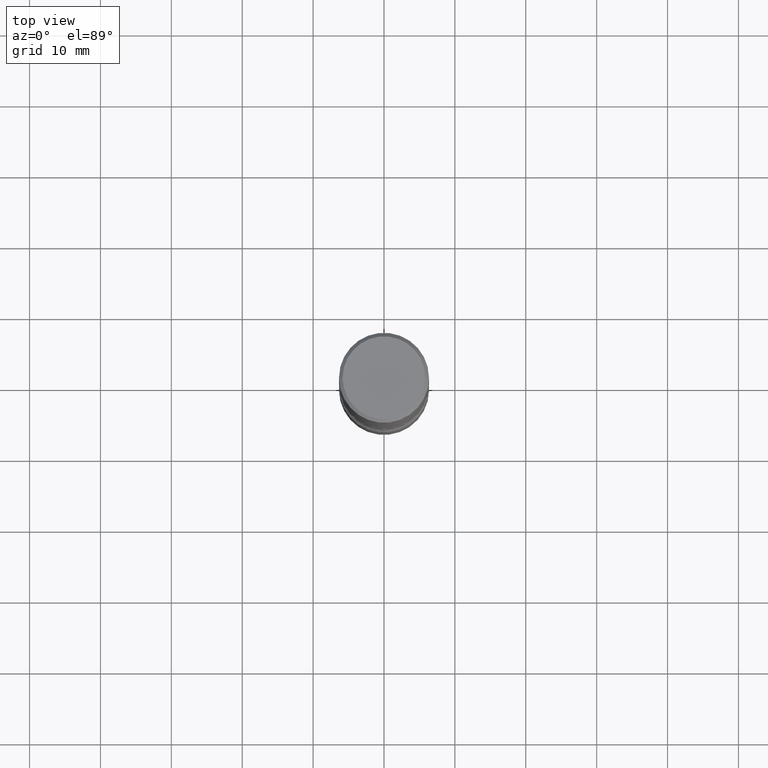
[diagram: clean part render]
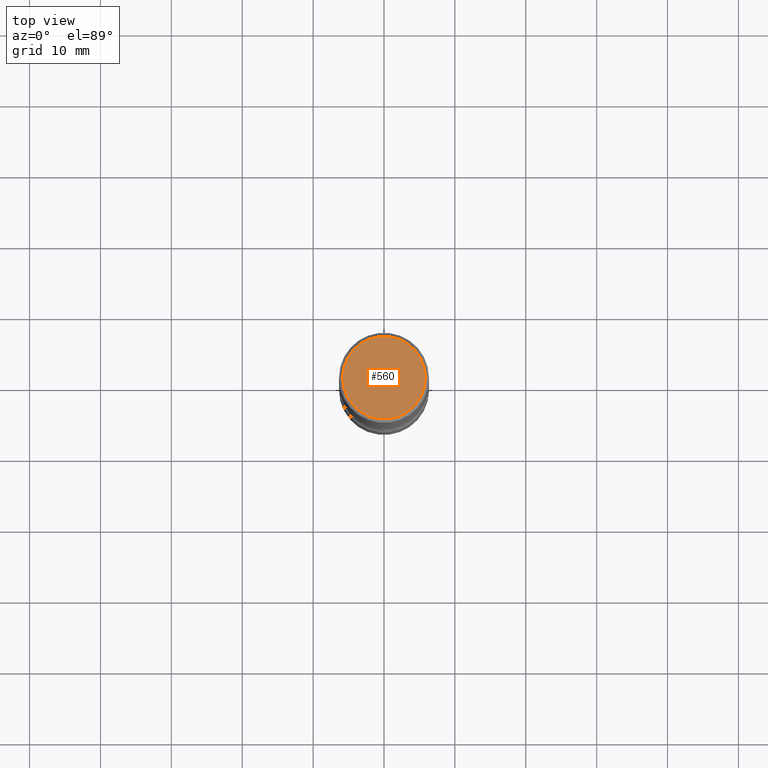
[diagram: same view with one face highlighted and labeled with its STEP entity id]
A machine part, top view. The second image highlights one B-rep face of the part: STEP entity #560.
In plain terms, the highlighted planar face has unit normal (0, -0, -1).
Its self-contained STEP definition (entity closure, byte-faithful):
#55 = CARTESIAN_POINT ( 'NONE',  ( 1.606081415867840476E-15, 0.2299999999999998990, -8.030407079339231961E-16 ) ) ;
#97 = EDGE_CURVE ( 'NONE', #247, #457, #409, .T. ) ;
#104 = DIRECTION ( 'NONE',  ( 2.438088387897960049E-29, -3.491481338843145188E-15, -1.000000000000000000 ) ) ;
#105 = DIRECTION ( 'NONE',  ( 1.000000000000000000, -6.982962677686267499E-15, 4.876176775795936353E-29 ) ) ;
#154 = AXIS2_PLACEMENT_3D ( 'NONE', #55, #104, #278 ) ;
#179 = CARTESIAN_POINT ( 'NONE',  ( 0.000000000000000000, 0.000000000000000000, 0.000000000000000000 ) ) ;
#215 = EDGE_CURVE ( 'NONE', #457, #247, #229, .T. ) ;
#217 = ORIENTED_EDGE ( 'NONE', *, *, #97, .T. ) ;
#221 = CARTESIAN_POINT ( 'NONE',  ( 0.2299999999999998990, -1.681434332853598617E-15, 1.149527484987432660E-29 ) ) ;
#229 = CIRCLE ( 'NONE', #541, 0.2299999999999998990 ) ;
#247 = VERTEX_POINT ( 'NONE', #296 ) ;
#271 = FACE_OUTER_BOUND ( 'NONE', #496, .T. ) ;
#278 = DIRECTION ( 'NONE',  ( -1.000000000000000000, 6.982962677686265922E-15, -4.876176775795935793E-29 ) ) ;
#279 = DIRECTION ( 'NONE',  ( -2.445468806185136597E-29, 3.491481338843145583E-15, 1.000000000000000000 ) ) ;
#296 = CARTESIAN_POINT ( 'NONE',  ( -0.2299999999999998990, 1.640996229256271928E-15, -1.135408596578605420E-29 ) ) ;
#318 = CARTESIAN_POINT ( 'NONE',  ( 0.000000000000000000, 0.000000000000000000, 0.000000000000000000 ) ) ;
#349 = DIRECTION ( 'NONE',  ( -2.445468806185136597E-29, 3.491481338843145583E-15, 1.000000000000000000 ) ) ;
#356 = AXIS2_PLACEMENT_3D ( 'NONE', #318, #279, #105 ) ;
#364 = PLANE ( 'NONE',  #154 ) ;
#409 = CIRCLE ( 'NONE', #356, 0.2299999999999998990 ) ;
#457 = VERTEX_POINT ( 'NONE', #221 ) ;
#468 = ORIENTED_EDGE ( 'NONE', *, *, #215, .T. ) ;
#481 = DIRECTION ( 'NONE',  ( 1.000000000000000000, -6.982962677686267499E-15, 4.876176775795936353E-29 ) ) ;
#496 = EDGE_LOOP ( 'NONE', ( #217, #468 ) ) ;
#541 = AXIS2_PLACEMENT_3D ( 'NONE', #179, #349, #481 ) ;
#560 = ADVANCED_FACE ( 'NONE', ( #271 ), #364, .F. ) ;